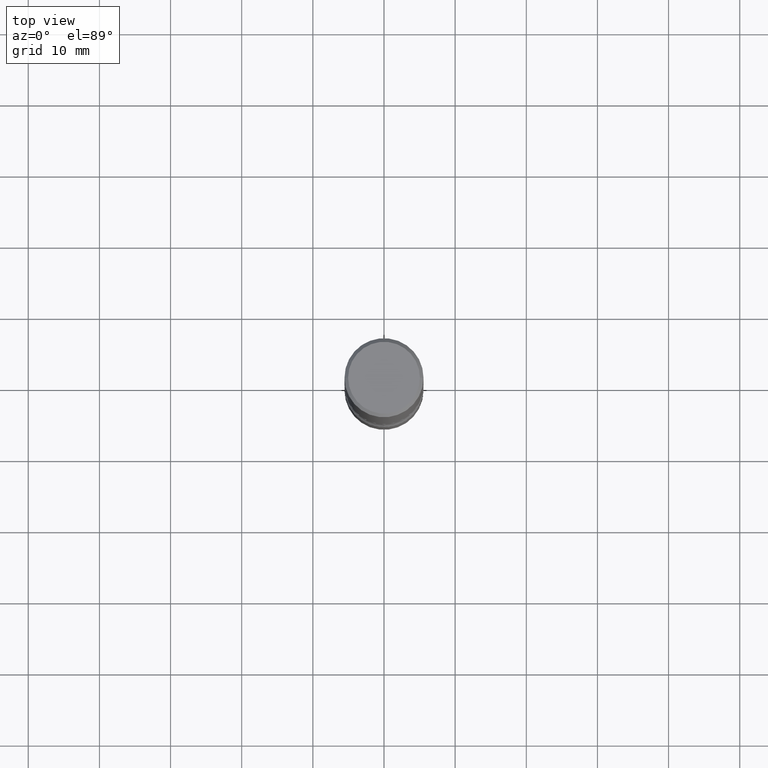
[diagram: clean part render]
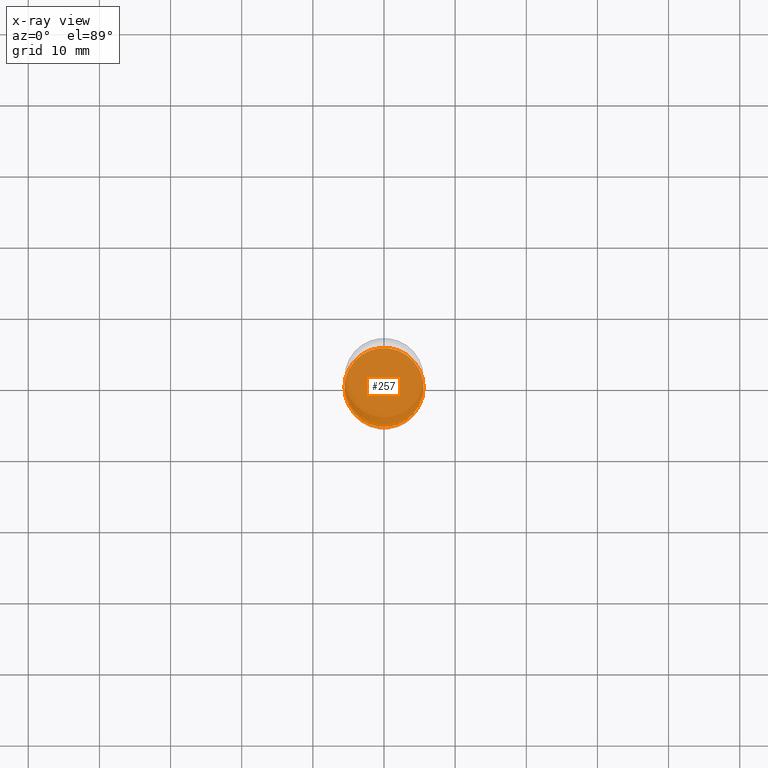
[diagram: x-ray — body ghosted, one internal face saturated and labeled with its STEP entity id]
A machine part, top view, then the same camera in x-ray: the body is ghosted and one INTERNAL B-rep face — a face not visible from any outside direction — is saturated and labeled: STEP entity #257.
In plain terms, the highlighted planar face has unit normal (0, -0, -1).
Its self-contained STEP definition (entity closure, byte-faithful):
#26 = CARTESIAN_POINT ( 'NONE',  ( 7.642090019328550744E-29, -1.091087918388482645E-14, -3.124999999999999112 ) ) ;
#29 = ORIENTED_EDGE ( 'NONE', *, *, #200, .T. ) ;
#50 = EDGE_CURVE ( 'NONE', #163, #408, #448, .T. ) ;
#54 = PLANE ( 'NONE',  #554 ) ;
#82 = CARTESIAN_POINT ( 'NONE',  ( 7.642090019328550744E-29, -1.091087918388482645E-14, -3.124999999999999112 ) ) ;
#95 = DIRECTION ( 'NONE',  ( 1.000000000000000000, -6.982962677686265922E-15, 0.000000000000000000 ) ) ;
#163 = VERTEX_POINT ( 'NONE', #491 ) ;
#184 = CIRCLE ( 'NONE', #514, 0.2187500000000001943 ) ;
#200 = EDGE_CURVE ( 'NONE', #408, #163, #184, .T. ) ;
#204 = DIRECTION ( 'NONE',  ( -2.445468806185136597E-29, 3.491481338843145583E-15, 1.000000000000000000 ) ) ;
#216 = DIRECTION ( 'NONE',  ( -2.445468806185136597E-29, 3.491481338843145583E-15, 1.000000000000000000 ) ) ;
#226 = DIRECTION ( 'NONE',  ( -1.000000000000000000, 6.982962677686265922E-15, -4.876176775795935793E-29 ) ) ;
#257 = ADVANCED_FACE ( 'NONE', ( #302 ), #54, .F. ) ;
#293 = AXIS2_PLACEMENT_3D ( 'NONE', #82, #216, #511 ) ;
#302 = FACE_OUTER_BOUND ( 'NONE', #487, .T. ) ;
#355 = DIRECTION ( 'NONE',  ( 2.438088387897960049E-29, -3.491481338843145188E-15, -1.000000000000000000 ) ) ;
#359 = CARTESIAN_POINT ( 'NONE',  ( 1.309248789957701946E-28, -3.105599201986939029E-15, -3.124999999999999112 ) ) ;
#408 = VERTEX_POINT ( 'NONE', #488 ) ;
#448 = CIRCLE ( 'NONE', #293, 0.2187500000000001943 ) ;
#487 = EDGE_LOOP ( 'NONE', ( #544, #29 ) ) ;
#488 = CARTESIAN_POINT ( 'NONE',  ( -0.2187500000000001943, -1.085790392511215873E-14, -3.124999999999999112 ) ) ;
#491 = CARTESIAN_POINT ( 'NONE',  ( 0.2187500000000001943, -1.243840226962869808E-14, -3.124999999999999112 ) ) ;
#511 = DIRECTION ( 'NONE',  ( 1.000000000000000000, -6.982962677686265922E-15, 0.000000000000000000 ) ) ;
#514 = AXIS2_PLACEMENT_3D ( 'NONE', #26, #204, #95 ) ;
#544 = ORIENTED_EDGE ( 'NONE', *, *, #50, .T. ) ;
#554 = AXIS2_PLACEMENT_3D ( 'NONE', #359, #355, #226 ) ;